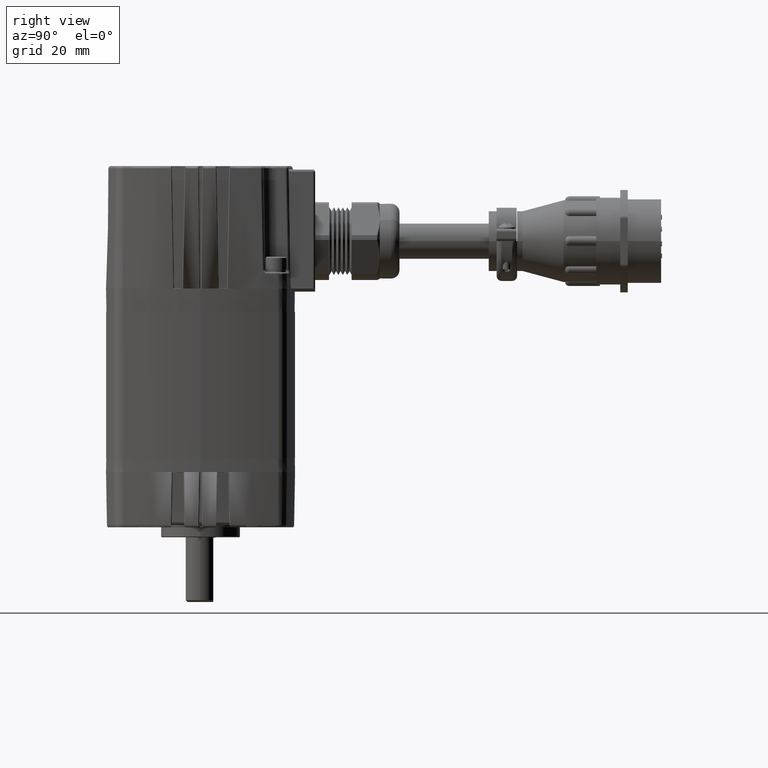
[diagram: clean part render]
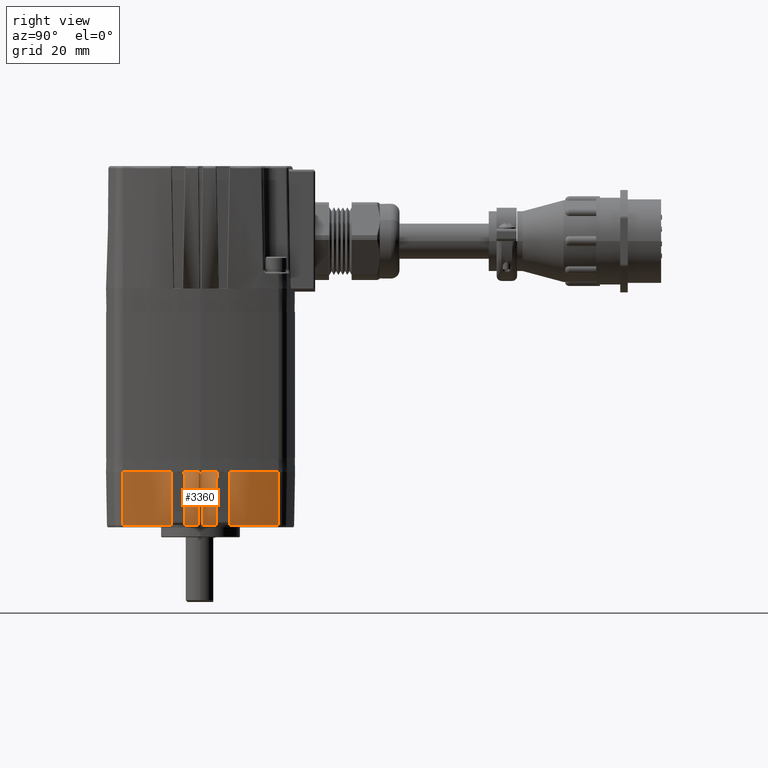
[diagram: same view with one face highlighted and labeled with its STEP entity id]
A machine part, right view. The second image highlights one B-rep face of the part: STEP entity #3360.
In plain terms, the highlighted conical surface has half-angle 1 deg.
Its self-contained STEP definition (entity closure, byte-faithful):
#407 = CARTESIAN_POINT ( 'NONE',  ( 1.175800266274668000, -0.02753576255780033200, -0.8357853582896775900 ) ) ;
#753 = AXIS2_PLACEMENT_3D ( 'NONE', #8725, #30107, #11807 ) ;
#858 = VERTEX_POINT ( 'NONE', #23947 ) ;
#1409 = DIRECTION ( 'NONE',  ( -1.000000000000000000, 0.0000000000000000000, 0.0000000000000000000 ) ) ;
#2031 = CIRCLE ( 'NONE', #37720, 4.835178673342796600 ) ;
#2077 = DIRECTION ( 'NONE',  ( 0.0000000000000000000, 0.0000000000000000000, 1.000000000000000000 ) ) ;
#2961 = VERTEX_POINT ( 'NONE', #27460 ) ;
#3027 = B_SPLINE_CURVE_WITH_KNOTS ( 'NONE', 3,
 ( #30498, #9105, #33530, #15293 ),
 .UNSPECIFIED., .F., .F.,
 ( 4, 4 ),
 ( 0.001123572713807256100, 0.01801705869090823200 ),
 .UNSPECIFIED. ) ;
#3239 = CARTESIAN_POINT ( 'NONE',  ( 1.183574639120514900, -0.02034213999941076500, -0.3925133046273557900 ) ) ;
#3318 = B_SPLINE_CURVE_WITH_KNOTS ( 'NONE', 3,
 ( #18763, #36990, #3466, #24863 ),
 .UNSPECIFIED., .F., .F.,
 ( 4, 4 ),
 ( 4.636042227214011000E-005, 0.01691631769101452000 ),
 .UNSPECIFIED. ) ;
#3360 = ADVANCED_FACE ( 'NONE', ( #31020 ), #13875, .T. ) ;
#3466 = CARTESIAN_POINT ( 'NONE',  ( 1.165732700693214800, -0.3679684591158972100, -0.6144625815020997600 ) ) ;
#3856 = B_SPLINE_CURVE_WITH_KNOTS ( 'NONE', 3,
 ( #34175, #9781, #37257, #19013 ),
 .UNSPECIFIED., .F., .F.,
 ( 4, 4 ),
 ( 3.026781348132777700E-005, 0.01691577321979698800 ),
 .UNSPECIFIED. ) ;
#4486 = AXIS2_PLACEMENT_3D ( 'NONE', #14655, #39155, #36091 ) ;
#4626 = VERTEX_POINT ( 'NONE', #33981 ) ;
#5678 = EDGE_CURVE ( 'NONE', #39420, #32623, #6679, .T. ) ;
#6053 = ORIENTED_EDGE ( 'NONE', *, *, #39113, .F. ) ;
#6516 = VERTEX_POINT ( 'NONE', #38258 ) ;
#6679 =( BOUNDED_CURVE ( )  B_SPLINE_CURVE ( 3, ( #33994, #31112, #12821, #34128 ),
 .UNSPECIFIED., .F., .F. ) 
 B_SPLINE_CURVE_WITH_KNOTS ( ( 4, 4 ),
 ( 0.04268213988765293800, 0.07460566252303672800 ),
 .UNSPECIFIED. ) 
 CURVE ( )  GEOMETRIC_REPRESENTATION_ITEM ( )  RATIONAL_B_SPLINE_CURVE ( ( 1.000000000000000000, 0.9999150758616341900, 0.9999150758616341900, 1.000000000000000000 ) ) 
 REPRESENTATION_ITEM ( '' )  );
#6999 = DIRECTION ( 'NONE',  ( 0.01709282551887740500, 0.003524458289347424300, 0.9998476951563912700 ) ) ;
#7183 = CIRCLE ( 'NONE', #753, 4.835178673342796600 ) ;
#7186 = AXIS2_PLACEMENT_3D ( 'NONE', #31216, #12936, #34229 ) ;
#7689 = DIRECTION ( 'NONE',  ( 0.0000000000000000000, 0.0000000000000000000, 1.000000000000000000 ) ) ;
#8077 = CARTESIAN_POINT ( 'NONE',  ( 1.187494377840219400, -0.005581656594907330800, -0.1708744782890035400 ) ) ;
#8330 = EDGE_CURVE ( 'NONE', #17436, #858, #2031, .T. ) ;
#8390 = CARTESIAN_POINT ( 'NONE',  ( 1.161582676036516400, -0.3715414203557936800, -0.8357853582896775900 ) ) ;
#8465 = EDGE_CURVE ( 'NONE', #35123, #14611, #13358, .T. ) ;
#8653 = AXIS2_PLACEMENT_3D ( 'NONE', #30802, #12519, #33845 ) ;
#8725 = CARTESIAN_POINT ( 'NONE',  ( -3.659300000000000000, -3.939946744927172900E-016, -0.8357853582896852500 ) ) ;
#8858 = CARTESIAN_POINT ( 'NONE',  ( 1.177858532890384300, 0.3094501014208621000, -0.1715482822067276900 ) ) ;
#9105 = CARTESIAN_POINT ( 'NONE',  ( 1.179689482596121100, 0.02393909382625705000, -0.6141493647838987000 ) ) ;
#9569 = CIRCLE ( 'NONE', #22605, 4.835178673342797500 ) ;
#9661 = CARTESIAN_POINT ( 'NONE',  ( 1.161582676036516700, 0.3715414203557936800, -0.8357853582896775900 ) ) ;
#9781 = CARTESIAN_POINT ( 'NONE',  ( 1.179359375315698800, 0.2029491010529197200, -0.3927174750079240900 ) ) ;
#9903 = LINE ( 'NONE', #25509, #25162 ) ;
#10236 = ORIENTED_EDGE ( 'NONE', *, *, #23399, .T. ) ;
#10782 = EDGE_CURVE ( 'NONE', #2961, #20265, #3856, .T. ) ;
#11181 = CARTESIAN_POINT ( 'NONE',  ( 1.187455763161262100, 0.01674490299919298100, -0.1708771784903972700 ) ) ;
#11807 = DIRECTION ( 'NONE',  ( -1.000000000000000000, 0.0000000000000000000, 0.0000000000000000000 ) ) ;
#11868 =( BOUNDED_CURVE ( )  B_SPLINE_CURVE ( 3, ( #30235, #8858, #15050, #36351 ),
 .UNSPECIFIED., .F., .F. ) 
 B_SPLINE_CURVE_WITH_KNOTS ( ( 4, 4 ),
 ( 6.208579644656549800, 6.240503167291933600 ),
 .UNSPECIFIED. ) 
 CURVE ( )  GEOMETRIC_REPRESENTATION_ITEM ( )  RATIONAL_B_SPLINE_CURVE ( ( 1.000000000000000000, 0.9999150758616341900, 0.9999150758616341900, 1.000000000000000000 ) ) 
 REPRESENTATION_ITEM ( '' )  );
#12232 = ORIENTED_EDGE ( 'NONE', *, *, #19788, .F. ) ;
#12513 = CARTESIAN_POINT ( 'NONE',  ( 1.175800266274668000, -0.02753576255780033200, -0.8357853582896775900 ) ) ;
#12519 = DIRECTION ( 'NONE',  ( 0.0000000000000000000, -1.299949431138582200E-016, 1.000000000000000000 ) ) ;
#12628 = CARTESIAN_POINT ( 'NONE',  ( 1.175639139605508600, -0.1993423950602597700, -0.6142514457331194100 ) ) ;
#12748 = CARTESIAN_POINT ( 'NONE',  ( 1.165732700693214600, 0.3679684591158972100, -0.6144625815020997600 ) ) ;
#12821 = CARTESIAN_POINT ( 'NONE',  ( 1.177858532890384300, -0.3094501014208629900, -0.1715482822067276900 ) ) ;
#12936 = DIRECTION ( 'NONE',  ( 0.0000000000000000000, -1.299949431138582200E-016, 1.000000000000000000 ) ) ;
#13149 = LINE ( 'NONE', #25317, #30323 ) ;
#13358 =( BOUNDED_CURVE ( )  B_SPLINE_CURVE ( 3, ( #11181, #29466, #8077, #14291 ),
 .UNSPECIFIED., .F., .T. ) 
 B_SPLINE_CURVE_WITH_KNOTS ( ( 4, 4 ),
 ( 6.279726233108903000, 6.286644381250268600 ),
 .UNSPECIFIED. ) 
 CURVE ( )  GEOMETRIC_REPRESENTATION_ITEM ( )  RATIONAL_B_SPLINE_CURVE ( ( 1.000000000000000000, 0.9999960116061679100, 0.9999960116061679100, 1.000000000000000000 ) ) 
 REPRESENTATION_ITEM ( '' )  );
#13875 = CONICAL_SURFACE ( 'NONE', #4486, 4.846799999999999100, 0.01745329251994333400 ) ;
#14147 = VERTEX_POINT ( 'NONE', #31542 ) ;
#14291 = CARTESIAN_POINT ( 'NONE',  ( 1.187455763161261900, -0.01674490299919309500, -0.1708771784903972700 ) ) ;
#14611 = VERTEX_POINT ( 'NONE', #16292 ) ;
#14655 = CARTESIAN_POINT ( 'NONE',  ( -3.659300000000000000, -3.939946744927172900E-016, -0.1700000000000001000 ) ) ;
#14922 = ORIENTED_EDGE ( 'NONE', *, *, #21568, .F. ) ;
#15050 = CARTESIAN_POINT ( 'NONE',  ( 1.180877830013380600, 0.2580239037788411000, -0.1713371523846062000 ) ) ;
#15293 = CARTESIAN_POINT ( 'NONE',  ( 1.187455763161262100, 0.01674490299919298100, -0.1708771784903972700 ) ) ;
#15715 = CARTESIAN_POINT ( 'NONE',  ( 1.179359375315698800, -0.2029491010529198600, -0.3927174750079240900 ) ) ;
#15943 = CARTESIAN_POINT ( 'NONE',  ( 1.187455763161262100, 0.01674490299919298100, -0.1708771784903972700 ) ) ;
#16292 = CARTESIAN_POINT ( 'NONE',  ( 1.187455763161261900, -0.01674490299919309500, -0.1708771784903972700 ) ) ;
#16486 = EDGE_CURVE ( 'NONE', #858, #4626, #13149, .T. ) ;
#16812 = EDGE_CURVE ( 'NONE', #22857, #39420, #22453, .T. ) ;
#17096 = ORIENTED_EDGE ( 'NONE', *, *, #20928, .T. ) ;
#17436 = VERTEX_POINT ( 'NONE', #25503 ) ;
#17724 = CARTESIAN_POINT ( 'NONE',  ( 1.174018801935931200, 0.3608215568568741700, -0.1718167823510934100 ) ) ;
#18393 = VERTEX_POINT ( 'NONE', #34066 ) ;
#18668 = ORIENTED_EDGE ( 'NONE', *, *, #5678, .F. ) ;
#18763 = CARTESIAN_POINT ( 'NONE',  ( 1.174018801935930100, -0.3608215568568741700, -0.1718167823510934100 ) ) ;
#18898 = CARTESIAN_POINT ( 'NONE',  ( 1.174018801935931200, 0.3608215568568741700, -0.1718167823510934100 ) ) ;
#19013 = CARTESIAN_POINT ( 'NONE',  ( 1.171915193010779800, 0.1957359496127903100, -0.8357853582896568300 ) ) ;
#19461 = ORIENTED_EDGE ( 'NONE', *, *, #16486, .T. ) ;
#19744 = DIRECTION ( 'NONE',  ( 0.0000000000000000000, 0.0000000000000000000, 1.000000000000000000 ) ) ;
#19788 = EDGE_CURVE ( 'NONE', #38041, #2961, #11868, .T. ) ;
#20265 = VERTEX_POINT ( 'NONE', #24163 ) ;
#20386 = ORIENTED_EDGE ( 'NONE', *, *, #8330, .T. ) ;
#20397 = CARTESIAN_POINT ( 'NONE',  ( -3.659300000000000000, -3.939946744927172900E-016, -0.8357853582896502800 ) ) ;
#20928 = EDGE_CURVE ( 'NONE', #25730, #20265, #9569, .T. ) ;
#21176 = CIRCLE ( 'NONE', #8653, 4.846799999999999100 ) ;
#21568 = EDGE_CURVE ( 'NONE', #25730, #35123, #3027, .T. ) ;
#21675 = CARTESIAN_POINT ( 'NONE',  ( 1.171915193010779200, -0.1957359496127898700, -0.8357853582896830300 ) ) ;
#22015 = VERTEX_POINT ( 'NONE', #8390 ) ;
#22453 = B_SPLINE_CURVE_WITH_KNOTS ( 'NONE', 3,
 ( #21675, #12628, #15715, #37008 ),
 .UNSPECIFIED., .F., .F.,
 ( 4, 4 ),
 ( 0.001123559417597624600, 0.01800906482391329000 ),
 .UNSPECIFIED. ) ;
#22605 = AXIS2_PLACEMENT_3D ( 'NONE', #20397, #2077, #23456 ) ;
#22857 = VERTEX_POINT ( 'NONE', #29452 ) ;
#23399 = EDGE_CURVE ( 'NONE', #14147, #18393, #9903, .T. ) ;
#23456 = DIRECTION ( 'NONE',  ( -1.000000000000000000, 0.0000000000000000000, 0.0000000000000000000 ) ) ;
#23909 = CIRCLE ( 'NONE', #7186, 4.846799999999999100 ) ;
#23947 = CARTESIAN_POINT ( 'NONE',  ( 1.076256996855582600, 0.9764490425419731800, -0.8357853582896775900 ) ) ;
#24163 = CARTESIAN_POINT ( 'NONE',  ( 1.171915193010779800, 0.1957359496127903100, -0.8357853582896568300 ) ) ;
#24623 = CARTESIAN_POINT ( 'NONE',  ( 1.187455763161261900, -0.01674490299919309500, -0.1708771784903972700 ) ) ;
#24863 = CARTESIAN_POINT ( 'NONE',  ( 1.161582676036516400, -0.3715414203557936800, -0.8357853582896775900 ) ) ;
#25162 = VECTOR ( 'NONE', #34713, 39.37007874015748100 ) ;
#25317 = CARTESIAN_POINT ( 'NONE',  ( 1.087638883334291600, 0.9787959327096632500, -0.1700000000000001000 ) ) ;
#25503 = CARTESIAN_POINT ( 'NONE',  ( 1.161582676036516700, 0.3715414203557936800, -0.8357853582896775900 ) ) ;
#25509 = CARTESIAN_POINT ( 'NONE',  ( 1.087638883334291600, -0.9787959327096653600, -0.1700000000000001000 ) ) ;
#25575 = CARTESIAN_POINT ( 'NONE',  ( 1.174018801935930100, -0.3608215568568741700, -0.1718167823510934100 ) ) ;
#25641 = CARTESIAN_POINT ( 'NONE',  ( 1.175800266274668300, 0.02753576255780034900, -0.8357853582896775900 ) ) ;
#25730 = VERTEX_POINT ( 'NONE', #25641 ) ;
#26008 = CARTESIAN_POINT ( 'NONE',  ( -3.659300000000000000, -3.939946744927172900E-016, -0.8357853582896852500 ) ) ;
#26057 = EDGE_CURVE ( 'NONE', #6516, #4626, #21176, .T. ) ;
#27460 = CARTESIAN_POINT ( 'NONE',  ( 1.183075924071299600, 0.2065560659073830700, -0.1711834466747836100 ) ) ;
#27523 = B_SPLINE_CURVE_WITH_KNOTS ( 'NONE', 3,
 ( #24623, #3239, #30796, #12513 ),
 .UNSPECIFIED., .F., .F.,
 ( 4, 4 ),
 ( 2.248674039653309300E-005, 0.01691597271749751400 ),
 .UNSPECIFIED. ) ;
#27693 = ORIENTED_EDGE ( 'NONE', *, *, #16812, .F. ) ;
#28154 = EDGE_CURVE ( 'NONE', #22857, #28355, #7183, .T. ) ;
#28325 = EDGE_CURVE ( 'NONE', #32623, #22015, #3318, .T. ) ;
#28355 = VERTEX_POINT ( 'NONE', #407 ) ;
#28480 = ORIENTED_EDGE ( 'NONE', *, *, #29447, .F. ) ;
#29033 = B_SPLINE_CURVE_WITH_KNOTS ( 'NONE', 3,
 ( #9661, #12748, #37130, #18898 ),
 .UNSPECIFIED., .F., .F.,
 ( 4, 4 ),
 ( 0.001123595711980207900, 0.01799355298072258900 ),
 .UNSPECIFIED. ) ;
#29085 = DIRECTION ( 'NONE',  ( -1.000000000000000000, 0.0000000000000000000, 0.0000000000000000000 ) ) ;
#29416 = CARTESIAN_POINT ( 'NONE',  ( 1.183075924071300900, -0.2065560659073831500, -0.1711834466747836100 ) ) ;
#29447 = EDGE_CURVE ( 'NONE', #14147, #6516, #23909, .T. ) ;
#29452 = CARTESIAN_POINT ( 'NONE',  ( 1.171915193010779200, -0.1957359496127898700, -0.8357853582896830300 ) ) ;
#29466 = CARTESIAN_POINT ( 'NONE',  ( 1.187494377840219400, 0.005581656594912028400, -0.1708744782890035400 ) ) ;
#30107 = DIRECTION ( 'NONE',  ( 0.0000000000000000000, 0.0000000000000000000, 1.000000000000000000 ) ) ;
#30235 = CARTESIAN_POINT ( 'NONE',  ( 1.174018801935931200, 0.3608215568568741700, -0.1718167823510934100 ) ) ;
#30323 = VECTOR ( 'NONE', #6999, 39.37007874015748100 ) ;
#30387 = CIRCLE ( 'NONE', #36076, 4.835178673342796600 ) ;
#30417 = EDGE_LOOP ( 'NONE', ( #30661, #20386, #19461, #35164, #28480, #10236, #38819, #33291, #18668, #27693, #36611, #6053, #37199, #14922, #17096, #35171, #12232 ) ) ;
#30498 = CARTESIAN_POINT ( 'NONE',  ( 1.175800266274668300, 0.02753576255780034900, -0.8357853582896775900 ) ) ;
#30661 = ORIENTED_EDGE ( 'NONE', *, *, #38224, .F. ) ;
#30796 = CARTESIAN_POINT ( 'NONE',  ( 1.179689482596121500, -0.02393909382625713000, -0.6141493647838981400 ) ) ;
#30802 = CARTESIAN_POINT ( 'NONE',  ( -3.659300000000000000, -3.939946744927172900E-016, -0.1700000000000001000 ) ) ;
#31020 = FACE_OUTER_BOUND ( 'NONE', #30417, .T. ) ;
#31112 = CARTESIAN_POINT ( 'NONE',  ( 1.180877830013380600, -0.2580239037788419900, -0.1713371523846062000 ) ) ;
#31216 = CARTESIAN_POINT ( 'NONE',  ( -3.659300000000000000, -3.939946744927172900E-016, -0.1700000000000001000 ) ) ;
#31542 = CARTESIAN_POINT ( 'NONE',  ( 1.087638883334291600, -0.9787959327096653600, -0.1699999999999995400 ) ) ;
#32623 = VERTEX_POINT ( 'NONE', #25575 ) ;
#33291 = ORIENTED_EDGE ( 'NONE', *, *, #28325, .F. ) ;
#33530 = CARTESIAN_POINT ( 'NONE',  ( 1.183574639120514600, 0.02034213999941063600, -0.3925133046273557900 ) ) ;
#33845 = DIRECTION ( 'NONE',  ( -5.298211426187191800E-015, 1.000000000000000000, 1.268188905204381000E-016 ) ) ;
#33981 = CARTESIAN_POINT ( 'NONE',  ( 1.087638883334291600, 0.9787959327096655800, -0.1699999999999995400 ) ) ;
#33994 = CARTESIAN_POINT ( 'NONE',  ( 1.183075924071300900, -0.2065560659073831500, -0.1711834466747836100 ) ) ;
#34066 = CARTESIAN_POINT ( 'NONE',  ( 1.076256996855582600, -0.9764490425419751800, -0.8357853582896775900 ) ) ;
#34128 = CARTESIAN_POINT ( 'NONE',  ( 1.174018801935930100, -0.3608215568568741700, -0.1718167823510934100 ) ) ;
#34175 = CARTESIAN_POINT ( 'NONE',  ( 1.183075924071299600, 0.2065560659073830700, -0.1711834466747836100 ) ) ;
#34229 = DIRECTION ( 'NONE',  ( -5.298211426187191800E-015, 1.000000000000000000, 1.268188905204381000E-016 ) ) ;
#34713 = DIRECTION ( 'NONE',  ( -0.01709282551887740500, 0.003524458289347428700, -0.9998476951563912700 ) ) ;
#35123 = VERTEX_POINT ( 'NONE', #15943 ) ;
#35164 = ORIENTED_EDGE ( 'NONE', *, *, #26057, .F. ) ;
#35171 = ORIENTED_EDGE ( 'NONE', *, *, #10782, .F. ) ;
#36076 = AXIS2_PLACEMENT_3D ( 'NONE', #26008, #7689, #29085 ) ;
#36091 = DIRECTION ( 'NONE',  ( -1.000000000000000000, 0.0000000000000000000, 0.0000000000000000000 ) ) ;
#36351 = CARTESIAN_POINT ( 'NONE',  ( 1.183075924071299600, 0.2065560659073830700, -0.1711834466747836100 ) ) ;
#36611 = ORIENTED_EDGE ( 'NONE', *, *, #28154, .T. ) ;
#36990 = CARTESIAN_POINT ( 'NONE',  ( 1.169878064815054900, -0.3643951704960233200, -0.3931397225613002000 ) ) ;
#37008 = CARTESIAN_POINT ( 'NONE',  ( 1.183075924071300900, -0.2065560659073831500, -0.1711834466747836100 ) ) ;
#37130 = CARTESIAN_POINT ( 'NONE',  ( 1.169878064815054900, 0.3643951704960231000, -0.3931397225613002000 ) ) ;
#37199 = ORIENTED_EDGE ( 'NONE', *, *, #8465, .F. ) ;
#37257 = CARTESIAN_POINT ( 'NONE',  ( 1.175639139605508600, 0.1993423950602597200, -0.6142514457331188500 ) ) ;
#37720 = AXIS2_PLACEMENT_3D ( 'NONE', #38011, #19744, #1409 ) ;
#37850 = EDGE_CURVE ( 'NONE', #18393, #22015, #30387, .T. ) ;
#38011 = CARTESIAN_POINT ( 'NONE',  ( -3.659300000000000000, -3.939946744927172900E-016, -0.8357853582896852500 ) ) ;
#38041 = VERTEX_POINT ( 'NONE', #17724 ) ;
#38224 = EDGE_CURVE ( 'NONE', #17436, #38041, #29033, .T. ) ;
#38258 = CARTESIAN_POINT ( 'NONE',  ( 1.187499999999999300, -3.939946744927172900E-016, -0.1700000000000001000 ) ) ;
#38819 = ORIENTED_EDGE ( 'NONE', *, *, #37850, .T. ) ;
#39113 = EDGE_CURVE ( 'NONE', #14611, #28355, #27523, .T. ) ;
#39155 = DIRECTION ( 'NONE',  ( 0.0000000000000000000, 0.0000000000000000000, 1.000000000000000000 ) ) ;
#39420 = VERTEX_POINT ( 'NONE', #29416 ) ;